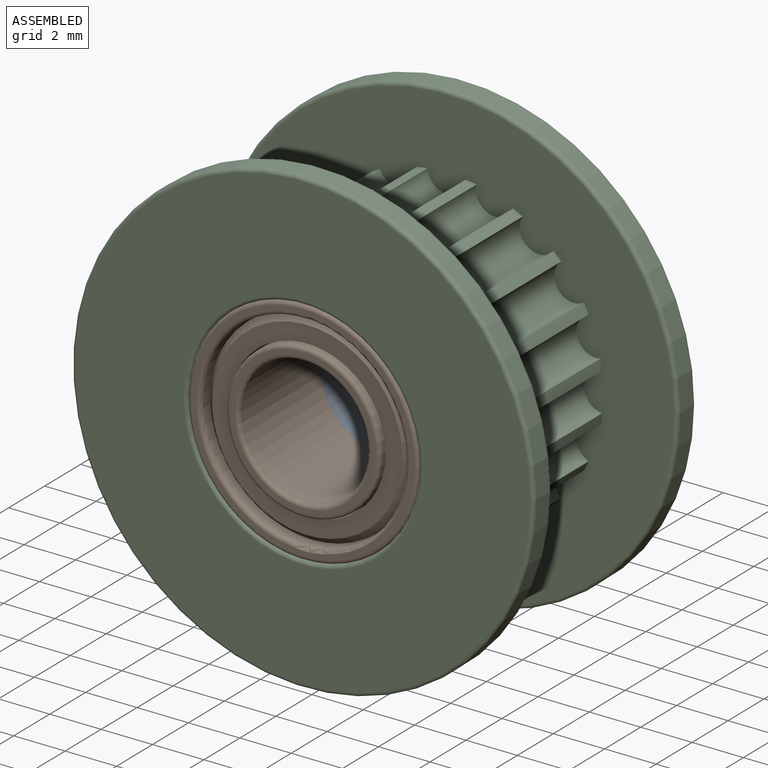
[diagram: assembled view]
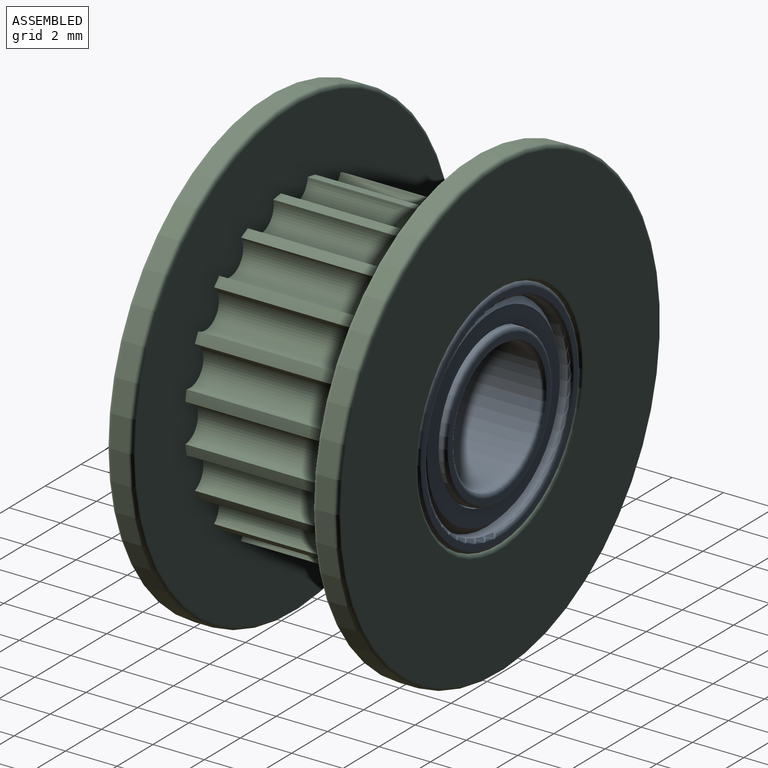
[diagram: assembled view, second angle]
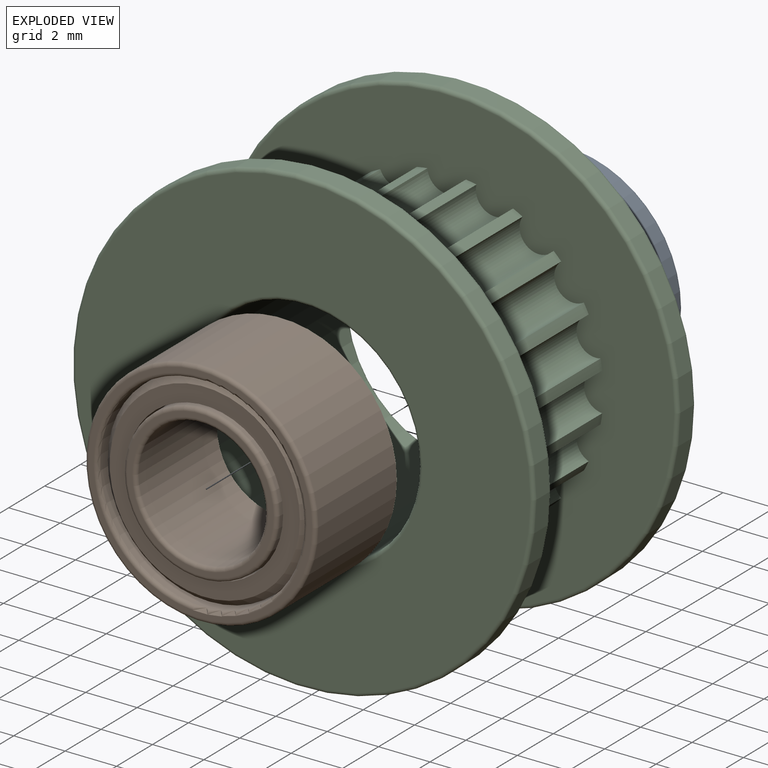
[diagram: exploded view]
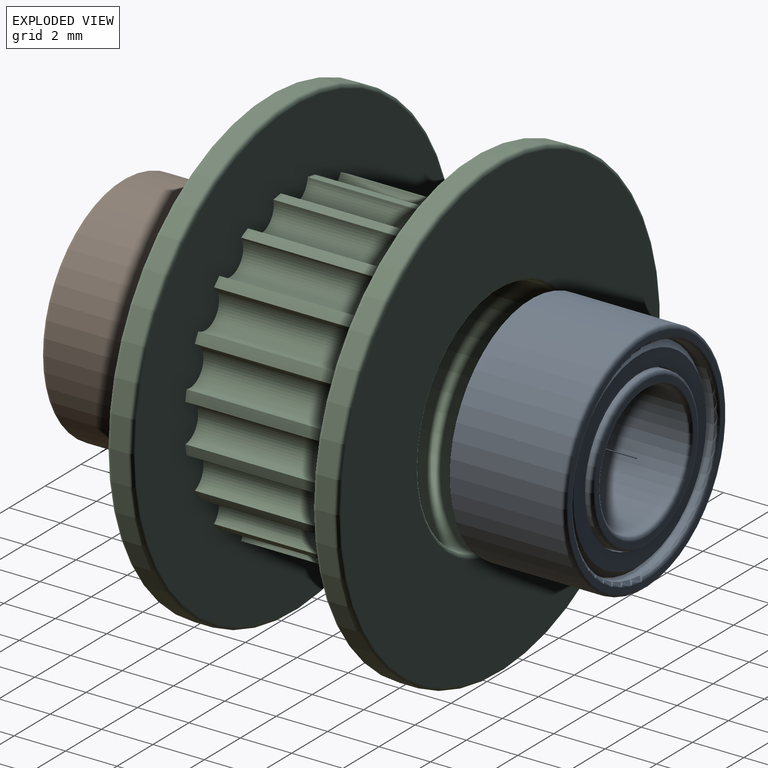
[diagram: exploded view, second angle]
ASSEMBLY  parts=3 mates=2
PART A: 17 faces, bbox 9.7x4.5x9.7 mm
  f0: torus R=2.65mm, axis (0,-1,0), area 3.8mm2, adj f1,f2
  f1: plane 5.7x5.7mm, normal (0,1,0), area 3.5mm2, adj f0,f3
  f2: cylinder r=2.5mm len=5mm, axis (0,1,0), area 68.3mm2, adj f0,f16
  f3: torus R=2.85mm, axis (0,1,0), area 4.4mm2, adj f1,f4
  f4: cylinder r=3mm len=6mm, axis (0,-1,0), area 20.7mm2, adj f3,f15
  f5: torus R=4.15mm, axis (0,-1,0), area 6mm2, adj f6,f7
  f6: plane 8.7x8.7mm, normal (0,1,0), area 5.3mm2, adj f5,f8
  f7: cylinder r=4mm len=8mm, axis (0,-1,0), area 27.6mm2, adj f5,f13
  f8: torus R=4.35mm, axis (0,1,0), area 6.6mm2, adj f6,f9
  f9: cylinder r=4.5mm len=9mm, axis (0,1,0), area 123mm2, adj f8,f16
  f10: cone r=3.82mm half-angle=45deg, axis (0,-1,0), area 8.5mm2, adj f11,f12
  f11: cylinder r=3.95mm len=7.9mm, axis (0,-1,0), area 18.6mm2, adj f10,f13
  f12: plane 7.4x7.4mm, normal (0,1,0), area 13.8mm2, adj f10,f14
  f13: plane 8x8mm, normal (0,1,0), area 1.2mm2, adj f7,f11
  f14: cylinder r=3.05mm len=6.1mm, axis (0,-1,0), area 19.2mm2, adj f12,f15
  f15: plane 6.1x6.1mm, normal (0,1,0), area 1mm2, adj f4,f14
  f16: plane 9x9mm, normal (0,-1,0), area 44mm2, adj f2,f9
PART B: 17 faces, bbox 9.7x4.5x9.7 mm
  f0: torus R=2.65mm, axis (0,-1,0), area 3.8mm2, adj f1,f2
  f1: plane 5.7x5.7mm, normal (0,-1,0), area 3.5mm2, adj f0,f3
  f2: cylinder r=2.5mm len=5mm, axis (0,1,0), area 68.3mm2, adj f0,f16
  f3: torus R=2.85mm, axis (0,-1,0), area 4.4mm2, adj f1,f4
  f4: cylinder r=3mm len=6mm, axis (0,-1,0), area 20.7mm2, adj f3,f15
  f5: torus R=4.15mm, axis (0,1,0), area 6mm2, adj f6,f7
  f6: plane 8.7x8.7mm, normal (0,-1,0), area 5.3mm2, adj f5,f8
  f7: cylinder r=4mm len=8mm, axis (0,-1,0), area 27.6mm2, adj f5,f13
  f8: torus R=4.35mm, axis (0,1,0), area 6.6mm2, adj f6,f9
  f9: cylinder r=4.5mm len=9mm, axis (0,1,0), area 123mm2, adj f8,f16
  f10: cone r=3.82mm half-angle=45deg, axis (0,1,0), area 8.5mm2, adj f11,f12
  f11: cylinder r=3.95mm len=7.9mm, axis (0,-1,0), area 18.6mm2, adj f10,f13
  f12: plane 7.4x7.4mm, normal (0,-1,0), area 13.8mm2, adj f10,f14
  f13: plane 8x8mm, normal (0,-1,0), area 1.2mm2, adj f7,f11
  f14: cylinder r=3.05mm len=6.1mm, axis (0,-1,0), area 19.2mm2, adj f12,f15
  f15: plane 6.1x6.1mm, normal (0,-1,0), area 1mm2, adj f4,f14
  f16: plane 9x9mm, normal (0,1,0), area 44mm2, adj f2,f9
PART C: 53 faces, bbox 19.5x9x19.5 mm
  f0: torus R=4.65mm, axis (0,-1,0), area 6.7mm2, adj f1,f2
  f1: cylinder r=4.5mm len=9mm, axis (0,1,0), area 246mm2, adj f0,f3
  f2: plane 17.7x17.7mm, normal (0,-1,0), area 178.1mm2, adj f0,f12
  f3: torus R=4.65mm, axis (0,1,0), area 6.7mm2, adj f1,f4
  f4: plane 17.7x17.7mm, normal (0,1,0), area 178.1mm2, adj f3,f5
  f5: torus R=8.85mm, axis (0,-1,0), area 13.2mm2, adj f4,f6
  f6: cylinder r=9mm len=18mm, axis (0,1,0), area 39.6mm2, adj f5,f7
  f7: torus R=8.85mm, axis (0,1,0), area 13.2mm2, adj f6,f8
  f8: plane 17.7x17.7mm, normal (0,-1,0), area 146.4mm2, adj f7,f13,f14,f15,f16,f17,f18,f19
  f9: torus R=8.85mm, axis (0,-1,0), area 13.2mm2, adj f10,f11
  f10: cylinder r=9mm len=18mm, axis (0,1,0), area 39.6mm2, adj f9,f12
  f11: plane 17.7x17.7mm, normal (0,1,0), area 146.4mm2, adj f9,f13,f14,f15,f16,f17,f18,f19
  f12: torus R=8.85mm, axis (0,1,0), area 13.2mm2, adj f2,f10
  f13: cylinder r=0.75mm len=7mm, axis (0,1,0), area 15.8mm2, adj f8,f11,f14,f52
  f14: cylinder r=6.1mm len=7mm, axis (0,1,0), area 2.9mm2, adj f8,f11,f13,f15
  f15: cylinder r=0.75mm len=7mm, axis (0,1,0), area 15.8mm2, adj f8,f11,f14,f16
  f16: cylinder r=6.1mm len=7mm, axis (0,1,0), area 2.9mm2, adj f8,f11,f15,f17
  f17: cylinder r=0.75mm len=7mm, axis (0,1,0), area 15.8mm2, adj f8,f11,f16,f18
  f18: cylinder r=6.1mm len=7mm, axis (0,1,0), area 2.9mm2, adj f8,f11,f17,f19
  f19: cylinder r=0.75mm len=7mm, axis (0,1,0), area 15.8mm2, adj f8,f11,f18,f20
  f20: cylinder r=6.1mm len=7mm, axis (0,1,0), area 2.9mm2, adj f8,f11,f19,f21
  f21: cylinder r=0.75mm len=7mm, axis (0,1,0), area 15.8mm2, adj f8,f11,f20,f22
  f22: cylinder r=6.1mm len=7mm, axis (0,1,0), area 2.9mm2, adj f8,f11,f21,f23
  f23: cylinder r=0.75mm len=7mm, axis (0,1,0), area 15.8mm2, adj f8,f11,f22,f24
  f24: cylinder r=6.1mm len=7mm, axis (0,1,0), area 2.9mm2, adj f8,f11,f23,f25
  f25: cylinder r=0.75mm len=7mm, axis (0,1,0), area 15.8mm2, adj f8,f11,f24,f26
  f26: cylinder r=6.1mm len=7mm, axis (0,1,0), area 2.9mm2, adj f8,f11,f25,f27
  f27: cylinder r=0.75mm len=7mm, axis (0,1,0), area 15.8mm2, adj f8,f11,f26,f28
  f28: cylinder r=6.1mm len=7mm, axis (0,1,0), area 2.9mm2, adj f8,f11,f27,f29
  f29: cylinder r=0.75mm len=7mm, axis (0,1,0), area 15.8mm2, adj f8,f11,f28,f30
  f30: cylinder r=6.1mm len=7mm, axis (0,1,0), area 2.9mm2, adj f8,f11,f29,f31
  f31: cylinder r=0.75mm len=7mm, axis (0,1,0), area 15.8mm2, adj f8,f11,f30,f32
  f32: cylinder r=6.1mm len=7mm, axis (0,1,0), area 2.9mm2, adj f8,f11,f31,f33
  f33: cylinder r=0.75mm len=7mm, axis (0,1,0), area 15.8mm2, adj f8,f11,f32,f34
  f34: cylinder r=6.1mm len=7mm, axis (0,1,0), area 2.9mm2, adj f8,f11,f33,f35
  f35: cylinder r=0.75mm len=7mm, axis (0,1,0), area 15.8mm2, adj f8,f11,f34,f36
  f36: cylinder r=6.1mm len=7mm, axis (0,1,0), area 2.9mm2, adj f8,f11,f35,f37
  f37: cylinder r=0.75mm len=7mm, axis (0,1,0), area 15.8mm2, adj f8,f11,f36,f38
  f38: cylinder r=6.1mm len=7mm, axis (0,1,0), area 2.9mm2, adj f8,f11,f37,f39
  f39: cylinder r=0.75mm len=7mm, axis (0,1,0), area 15.8mm2, adj f8,f11,f38,f40
  f40: cylinder r=6.1mm len=7mm, axis (0,1,0), area 2.9mm2, adj f8,f11,f39,f41
  f41: cylinder r=0.75mm len=7mm, axis (0,1,0), area 15.8mm2, adj f8,f11,f40,f42
  f42: cylinder r=6.1mm len=7mm, axis (0,1,0), area 2.9mm2, adj f8,f11,f41,f43
  f43: cylinder r=0.75mm len=7mm, axis (0,1,0), area 15.8mm2, adj f8,f11,f42,f44
  f44: cylinder r=6.1mm len=7mm, axis (0,1,0), area 2.9mm2, adj f8,f11,f43,f45
  f45: cylinder r=0.75mm len=7mm, axis (0,1,0), area 15.8mm2, adj f8,f11,f44,f46
  f46: cylinder r=6.1mm len=7mm, axis (0,1,0), area 2.9mm2, adj f8,f11,f45,f47
  f47: cylinder r=0.75mm len=7mm, axis (0,1,0), area 15.8mm2, adj f8,f11,f46,f48
  f48: cylinder r=6.1mm len=7mm, axis (0,1,0), area 2.9mm2, adj f8,f11,f47,f49
  f49: cylinder r=0.75mm len=7mm, axis (0,1,0), area 15.8mm2, adj f8,f11,f48,f50
  f50: cylinder r=6.1mm len=7mm, axis (0,1,0), area 2.9mm2, adj f8,f11,f49,f51
  f51: cylinder r=0.75mm len=7mm, axis (0,1,0), area 15.8mm2, adj f8,f11,f50,f52
  f52: cylinder r=6.1mm len=7mm, axis (0,1,0), area 2.9mm2, adj f8,f11,f13,f51
PLACE A at identity
PLACE B at identity
PLACE C at identity
MATE fastened A.f0 <-> C.f0  axis (0,1,0) through (0,4.5,0)mm
MATE fastened B.f0 <-> C.f0  axis (0,-1,0) through (0,-4.5,0)mm
